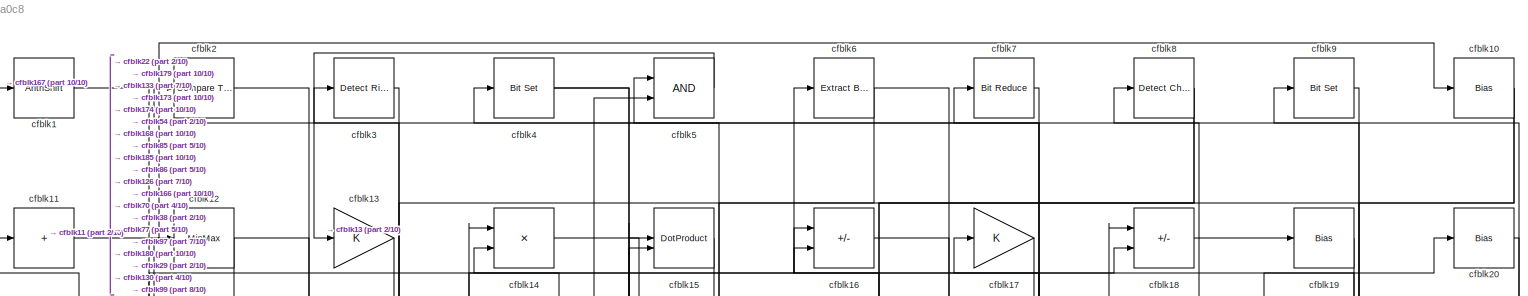
[diagram: root canvas - part 1/10, full width, top band]
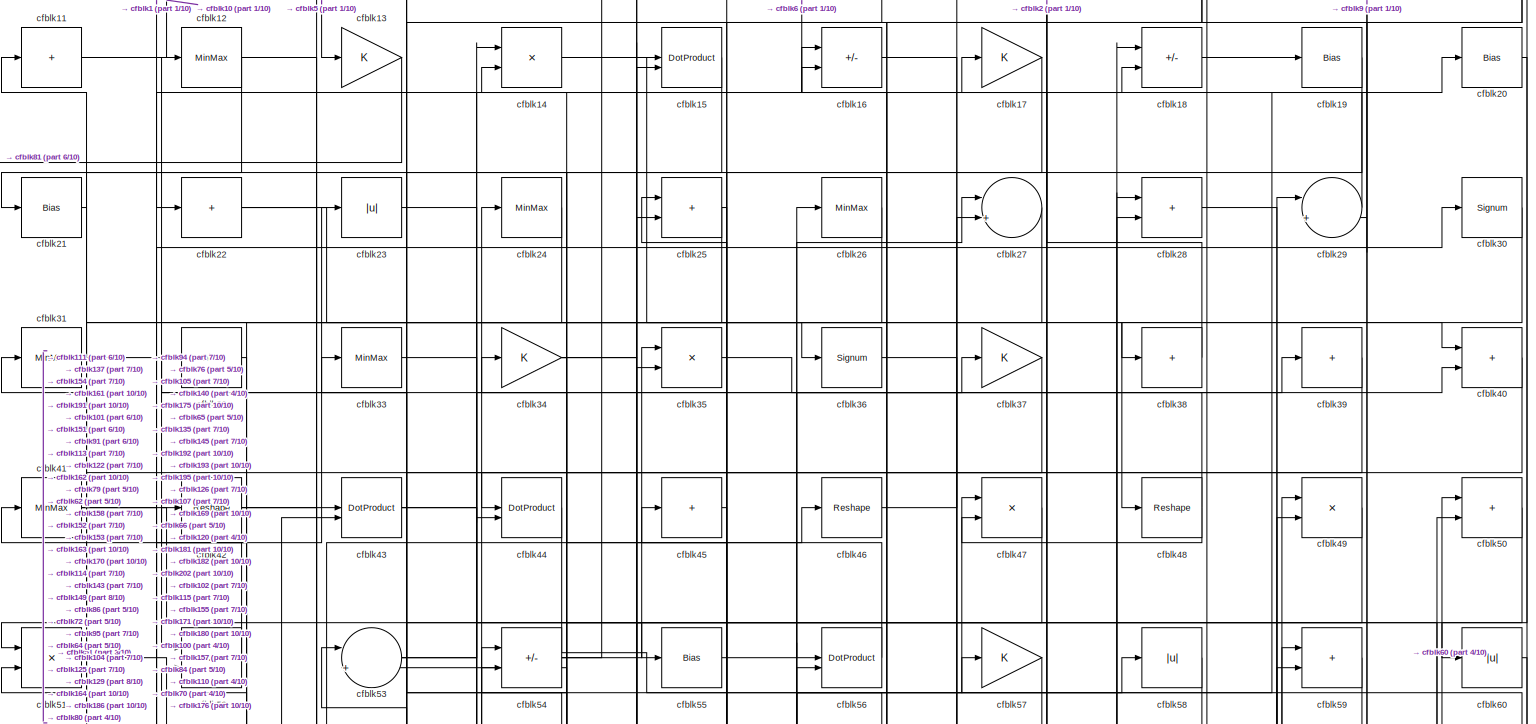
[diagram: root canvas - part 2/10, full width, top band]
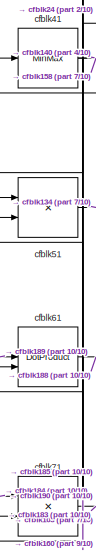
[diagram: root canvas - part 3/10, top left region]
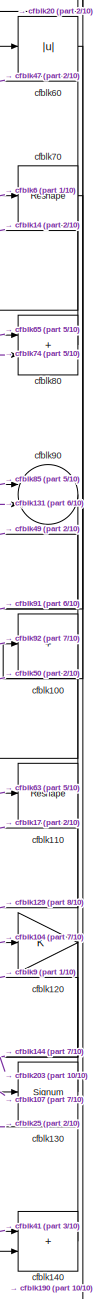
[diagram: root canvas - part 4/10, middle right region]
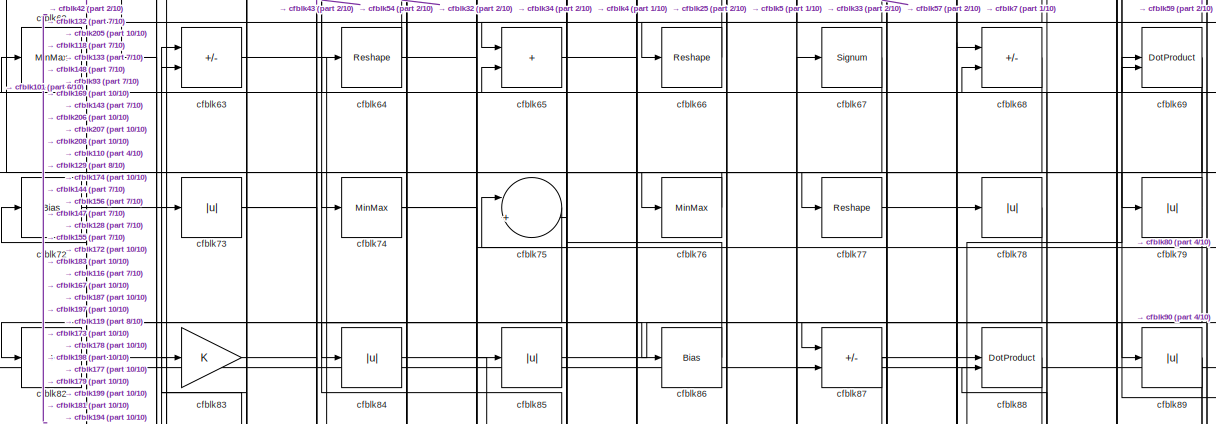
[diagram: root canvas - part 5/10, full width, middle band]
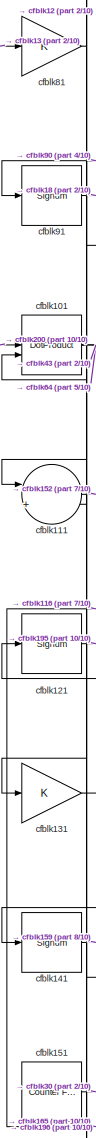
[diagram: root canvas - part 6/10, middle left region]
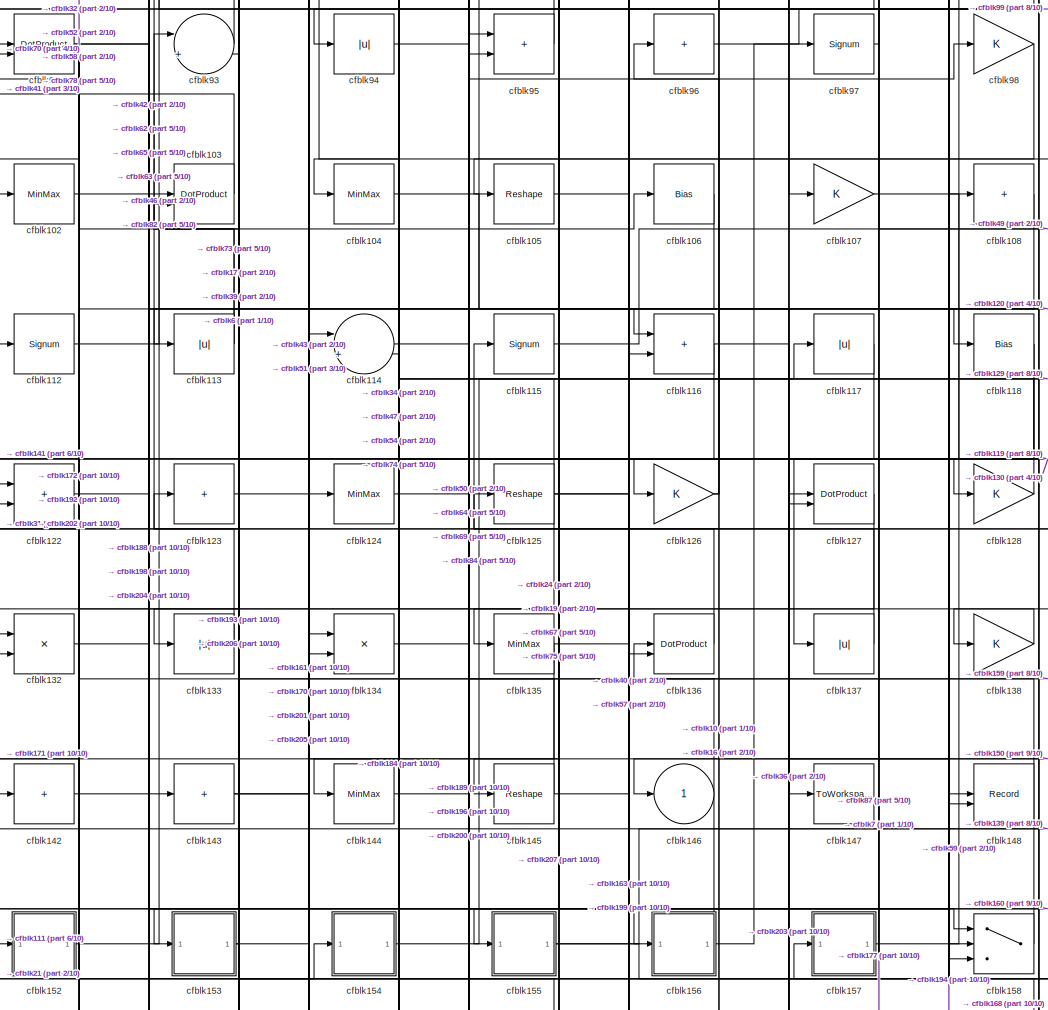
[diagram: root canvas - part 7/10, central region]
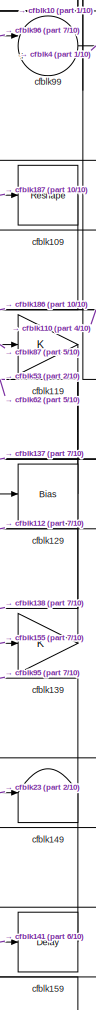
[diagram: root canvas - part 8/10, middle right region]
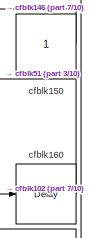
[diagram: root canvas - part 9/10, bottom right region]
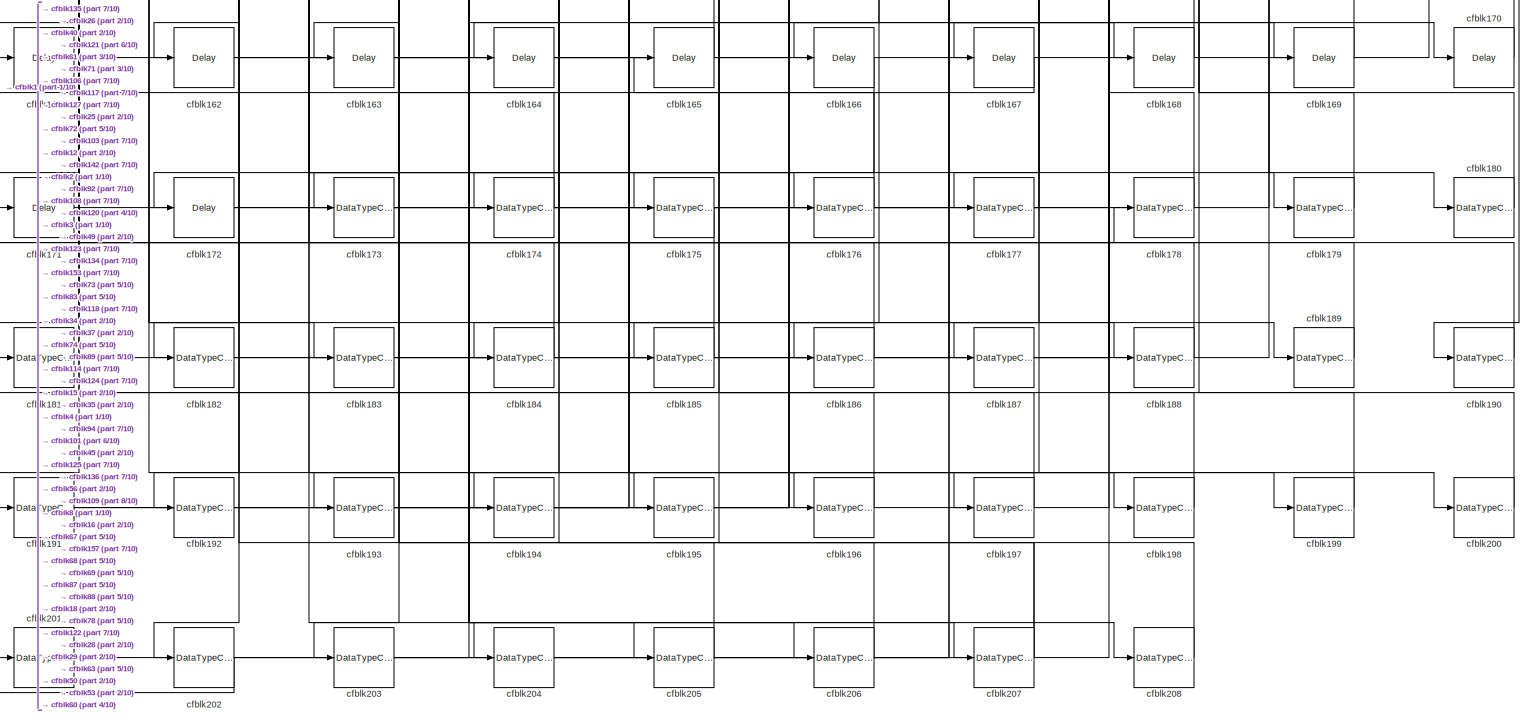
[diagram: root canvas - part 10/10, full width, bottom band]
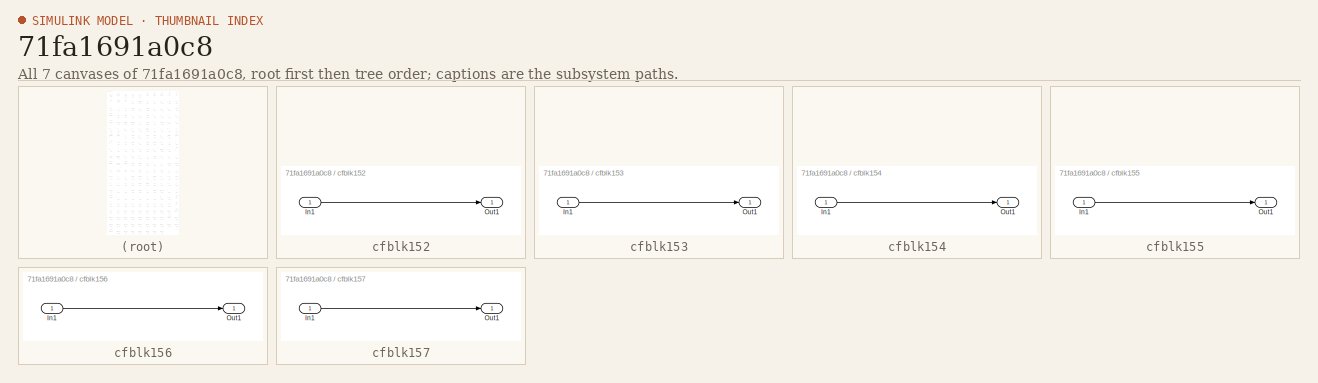
[diagram: thumbnail index - all 7 canvases of the model, root first then tree order]
MODEL slx_71fa1691a0c8
KIND model
CONFIG AbsTol = auto
CONFIG EnableMultiTasking = off
CONFIG FixedStep = auto
CONFIG MaxStep = auto
CONFIG MinStep = auto
CONFIG RelTol = 1e-3
CONFIG SampleTimeConstraint = Unconstrained
CONFIG SolverName = VariableStepAuto
CONFIG StartTime = 0.0
CONFIG StopTime = 10.0
BLOCK [ArithShift] cfblk1
  BitShiftNumber = 8
  InputPortMap = u0
BLOCK [Bias] cfblk10
  Bias = 0.0
  SaturateOnIntegerOverflow = off
BLOCK [Sum] cfblk100
  IconShape = rectangular
  Inputs = +
BLOCK [DotProduct] cfblk101
  OutDataTypeStr = Inherit: Inherit via internal rule
BLOCK [MinMax] cfblk102
BLOCK [DotProduct] cfblk103
  OutDataTypeStr = Inherit: Inherit via internal rule
BLOCK [MinMax] cfblk104
BLOCK [Reshape] cfblk105
BLOCK [Bias] cfblk106
  Bias = 0.0
  SaturateOnIntegerOverflow = off
BLOCK [Gain] cfblk107
BLOCK [Sum] cfblk108
  IconShape = rectangular
  Inputs = +
BLOCK [Reshape] cfblk109
BLOCK [Sum] cfblk11
  IconShape = rectangular
  Inputs = +
BLOCK [Reshape] cfblk110
BLOCK [Sum] cfblk111
  Inputs = |++
BLOCK [Signum] cfblk112
BLOCK [Abs] cfblk113
  SaturateOnIntegerOverflow = off
BLOCK [Sum] cfblk114
  Inputs = |++
BLOCK [Signum] cfblk115
BLOCK [Sum] cfblk116
  IconShape = rectangular
BLOCK [Abs] cfblk117
  SaturateOnIntegerOverflow = off
BLOCK [Bias] cfblk118
  Bias = 0.0
  SaturateOnIntegerOverflow = off
BLOCK [Gain] cfblk119
BLOCK [MinMax] cfblk12
BLOCK [Gain] cfblk120
BLOCK [Signum] cfblk121
BLOCK [Sum] cfblk122
  IconShape = rectangular
BLOCK [Sum] cfblk123
  IconShape = rectangular
  Inputs = +
BLOCK [MinMax] cfblk124
BLOCK [Reshape] cfblk125
BLOCK [Gain] cfblk126
BLOCK [DotProduct] cfblk127
  OutDataTypeStr = Inherit: Inherit via internal rule
BLOCK [Gain] cfblk128
BLOCK [Bias] cfblk129
  Bias = 0.0
  SaturateOnIntegerOverflow = off
BLOCK [Gain] cfblk13
BLOCK [Signum] cfblk130
BLOCK [Gain] cfblk131
BLOCK [Product] cfblk132
  Inputs = */
  RndMeth = Zero
  SaturateOnIntegerOverflow = on
BLOCK [Abs] cfblk133
  SaturateOnIntegerOverflow = off
BLOCK [Product] cfblk134
  Inputs = */
  RndMeth = Zero
  SaturateOnIntegerOverflow = on
BLOCK [MinMax] cfblk135
BLOCK [DotProduct] cfblk136
  OutDataTypeStr = Inherit: Inherit via internal rule
BLOCK [Abs] cfblk137
  SaturateOnIntegerOverflow = off
BLOCK [Gain] cfblk138
BLOCK [Gain] cfblk139
BLOCK [Product] cfblk14
  Inputs = */
  RndMeth = Zero
  SaturateOnIntegerOverflow = on
BLOCK [Sum] cfblk140
  IconShape = rectangular
BLOCK [Signum] cfblk141
BLOCK [Sum] cfblk142
  IconShape = rectangular
  Inputs = +
BLOCK [Sum] cfblk143
  IconShape = rectangular
  Inputs = +
BLOCK [MinMax] cfblk144
BLOCK [Reshape] cfblk145
BLOCK [Outport] cfblk146
  VectorParamsAs1DForOutWhenUnconnected = off
BLOCK [ToWorkspace] cfblk147
  MaxDataPoints = inf
  SampleTime = -1
  SaveFormat = Timeseries
  VariableName = simout
BLOCK [Record] cfblk148
  CompatibilityTag = XY
  FileSettingsInternal = {"entries":[{"content":{"excelSettings":{"content":{},"type":"Streamout.ExcelSettings"}},"type":"Streamout.FileSettingStorage","uuid":""}],"packageUris":["http:\/\/schema.mathworks.com\/mf0\/streamout_blocks\/R2020a"],"version":"1.0"}
  Layout = [1 1]
  SignalsInternal = {"entries":[{"content":{"signals":[{"content":{"blockPath":[],"dimensions":[1],"domain":"","lineColor":"#a2142f","plots":[1],"port":1,"signalID":6665,"signalName":"XY Graph:1"},"type":"RecordBlkView.Signal","uuid":""},{"content":{"blockPath":[],"dimensions":[1],"domain":"","lineColor":"#139fff","plots":[1],"port":2,"signalID":6668,"signalName":"XY Graph:2"},"type":"RecordBlkView.Signal","uuid":""}...<+146ch>
  VisualizationBindings = {"xyplotplugin":{"info":[{"series":[{"bindingParametersList":[{"parameter":"X-Axis","signalID":6665,"signalName":"XY Graph:1"},{"parameter":"Y-Axis","signalID":6668,"signalName":"XY Graph:2"}],"seriesID":59450}],"subplotID":1}]}}
  st = -1
BLOCK [Terminator] cfblk149
BLOCK [DotProduct] cfblk15
  OutDataTypeStr = Inherit: Inherit via internal rule
BLOCK [Constant] cfblk150
  SampleTime = -1
BLOCK [Reference] cfblk151  REF=hdlsllib/Sources/Counter
Free-Running
  SourceBlock = hdlsllib/Sources/Counter\nFree-Running
  SourceType = Counter Free-Running
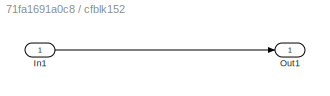
BLOCK [SubSystem] cfblk152
  LibrarySourceBlock = hdlsllib/Ports &\nSubsystems/Subsystem
BLOCK [Inport] cfblk152/In1
BLOCK [Outport] cfblk152/Out1
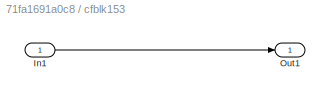
BLOCK [SubSystem] cfblk153
  LibrarySourceBlock = hdlsllib/Ports &\nSubsystems/Subsystem
BLOCK [Inport] cfblk153/In1
BLOCK [Outport] cfblk153/Out1
BLOCK [SubSystem] cfblk154
  LibrarySourceBlock = hdlsllib/Ports &\nSubsystems/Subsystem
BLOCK [Inport] cfblk154/In1
BLOCK [Outport] cfblk154/Out1
BLOCK [SubSystem] cfblk155
  LibrarySourceBlock = hdlsllib/Ports &\nSubsystems/Subsystem
BLOCK [Inport] cfblk155/In1
BLOCK [Outport] cfblk155/Out1
BLOCK [SubSystem] cfblk156
  LibrarySourceBlock = hdlsllib/Ports &\nSubsystems/Subsystem
BLOCK [Inport] cfblk156/In1
BLOCK [Outport] cfblk156/Out1
BLOCK [SubSystem] cfblk157
  LibrarySourceBlock = hdlsllib/Ports &\nSubsystems/Subsystem
BLOCK [Inport] cfblk157/In1
BLOCK [Outport] cfblk157/Out1
BLOCK [Switch] cfblk158
  InputSameDT = off
  SaturateOnIntegerOverflow = off
BLOCK [Delay] cfblk159
  InputPortMap = u0
  SampleTime = 1
BLOCK [Sum] cfblk16
  IconShape = rectangular
  Inputs = +-
BLOCK [Delay] cfblk160
  InputPortMap = u0
  SampleTime = 1
BLOCK [Delay] cfblk161
  InputPortMap = u0
  SampleTime = 1
BLOCK [Delay] cfblk162
  InputPortMap = u0
  SampleTime = 1
BLOCK [Delay] cfblk163
  InputPortMap = u0
  SampleTime = 1
BLOCK [Delay] cfblk164
  InputPortMap = u0
  SampleTime = 1
BLOCK [Delay] cfblk165
  InputPortMap = u0
  SampleTime = 1
BLOCK [Delay] cfblk166
  InputPortMap = u0
  SampleTime = 1
BLOCK [Delay] cfblk167
  InputPortMap = u0
  SampleTime = 1
BLOCK [Delay] cfblk168
  InputPortMap = u0
  SampleTime = 1
BLOCK [Delay] cfblk169
  InputPortMap = u0
  SampleTime = 1
BLOCK [Gain] cfblk17
BLOCK [Delay] cfblk170
  InputPortMap = u0
  SampleTime = 1
BLOCK [Delay] cfblk171
  InputPortMap = u0
  SampleTime = 1
BLOCK [Delay] cfblk172
  InputPortMap = u0
  SampleTime = 1
BLOCK [DataTypeConversion] cfblk173
  OutDataTypeStr = uint8
  RndMeth = Floor
  SaturateOnIntegerOverflow = off
BLOCK [DataTypeConversion] cfblk174
  OutDataTypeStr = uint8
  RndMeth = Floor
  SaturateOnIntegerOverflow = off
BLOCK [DataTypeConversion] cfblk175
  OutDataTypeStr = uint8
  RndMeth = Floor
  SaturateOnIntegerOverflow = off
BLOCK [DataTypeConversion] cfblk176
  OutDataTypeStr = uint8
  RndMeth = Floor
  SaturateOnIntegerOverflow = off
BLOCK [DataTypeConversion] cfblk177
  OutDataTypeStr = uint8
  RndMeth = Floor
  SaturateOnIntegerOverflow = off
BLOCK [DataTypeConversion] cfblk178
  OutDataTypeStr = uint8
  RndMeth = Floor
  SaturateOnIntegerOverflow = off
BLOCK [DataTypeConversion] cfblk179
  OutDataTypeStr = uint8
  RndMeth = Floor
  SaturateOnIntegerOverflow = off
BLOCK [Sum] cfblk18
  IconShape = rectangular
  Inputs = +-
BLOCK [DataTypeConversion] cfblk180
  OutDataTypeStr = uint8
  RndMeth = Floor
  SaturateOnIntegerOverflow = off
BLOCK [DataTypeConversion] cfblk181
  OutDataTypeStr = uint8
  RndMeth = Floor
  SaturateOnIntegerOverflow = off
BLOCK [DataTypeConversion] cfblk182
  OutDataTypeStr = uint8
  RndMeth = Floor
  SaturateOnIntegerOverflow = off
BLOCK [DataTypeConversion] cfblk183
  OutDataTypeStr = uint8
  RndMeth = Floor
  SaturateOnIntegerOverflow = off
BLOCK [DataTypeConversion] cfblk184
  OutDataTypeStr = uint8
  RndMeth = Floor
  SaturateOnIntegerOverflow = off
BLOCK [DataTypeConversion] cfblk185
  OutDataTypeStr = uint8
  RndMeth = Floor
  SaturateOnIntegerOverflow = off
BLOCK [DataTypeConversion] cfblk186
  OutDataTypeStr = uint8
  RndMeth = Floor
  SaturateOnIntegerOverflow = off
BLOCK [DataTypeConversion] cfblk187
  OutDataTypeStr = uint8
  RndMeth = Floor
  SaturateOnIntegerOverflow = off
BLOCK [DataTypeConversion] cfblk188
  OutDataTypeStr = uint8
  RndMeth = Floor
  SaturateOnIntegerOverflow = off
BLOCK [DataTypeConversion] cfblk189
  OutDataTypeStr = uint8
  RndMeth = Floor
  SaturateOnIntegerOverflow = off
BLOCK [Bias] cfblk19
  Bias = 0.0
  SaturateOnIntegerOverflow = off
BLOCK [DataTypeConversion] cfblk190
  OutDataTypeStr = uint8
  RndMeth = Floor
  SaturateOnIntegerOverflow = off
BLOCK [DataTypeConversion] cfblk191
  RndMeth = Floor
  SaturateOnIntegerOverflow = off
BLOCK [DataTypeConversion] cfblk192
  OutDataTypeStr = uint8
  RndMeth = Floor
  SaturateOnIntegerOverflow = off
BLOCK [DataTypeConversion] cfblk193
  OutDataTypeStr = uint8
  RndMeth = Floor
  SaturateOnIntegerOverflow = off
BLOCK [DataTypeConversion] cfblk194
  OutDataTypeStr = uint8
  RndMeth = Floor
  SaturateOnIntegerOverflow = off
BLOCK [DataTypeConversion] cfblk195
  OutDataTypeStr = uint8
  RndMeth = Floor
  SaturateOnIntegerOverflow = off
BLOCK [DataTypeConversion] cfblk196
  OutDataTypeStr = uint8
  RndMeth = Floor
  SaturateOnIntegerOverflow = off
BLOCK [DataTypeConversion] cfblk197
  OutDataTypeStr = uint8
  RndMeth = Floor
  SaturateOnIntegerOverflow = off
BLOCK [DataTypeConversion] cfblk198
  OutDataTypeStr = uint8
  RndMeth = Floor
  SaturateOnIntegerOverflow = off
BLOCK [DataTypeConversion] cfblk199
  OutDataTypeStr = uint8
  RndMeth = Floor
  SaturateOnIntegerOverflow = off
BLOCK [Reference] cfblk2  REF=hdlsllib/Logic and Bit
Operations/Compare
To Zero
  SourceBlock = hdlsllib/Logic and Bit\nOperations/Compare\nTo Zero
  SourceType = Compare To Zero
BLOCK [Bias] cfblk20
  Bias = 0.0
  SaturateOnIntegerOverflow = off
BLOCK [DataTypeConversion] cfblk200
  OutDataTypeStr = uint8
  RndMeth = Floor
  SaturateOnIntegerOverflow = off
BLOCK [DataTypeConversion] cfblk201
  OutDataTypeStr = uint8
  RndMeth = Floor
  SaturateOnIntegerOverflow = off
BLOCK [DataTypeConversion] cfblk202
  RndMeth = Floor
  SaturateOnIntegerOverflow = off
BLOCK [DataTypeConversion] cfblk203
  OutDataTypeStr = uint8
  RndMeth = Floor
  SaturateOnIntegerOverflow = off
BLOCK [DataTypeConversion] cfblk204
  OutDataTypeStr = uint8
  RndMeth = Floor
  SaturateOnIntegerOverflow = off
BLOCK [DataTypeConversion] cfblk205
  OutDataTypeStr = uint8
  RndMeth = Floor
  SaturateOnIntegerOverflow = off
BLOCK [DataTypeConversion] cfblk206
  OutDataTypeStr = uint8
  RndMeth = Floor
  SaturateOnIntegerOverflow = off
BLOCK [DataTypeConversion] cfblk207
  RndMeth = Floor
  SaturateOnIntegerOverflow = off
BLOCK [DataTypeConversion] cfblk208
  OutDataTypeStr = uint8
  RndMeth = Floor
  SaturateOnIntegerOverflow = off
BLOCK [Bias] cfblk21
  Bias = 0.0
  SaturateOnIntegerOverflow = off
BLOCK [Sum] cfblk22
  IconShape = rectangular
  Inputs = +
BLOCK [Abs] cfblk23
  SaturateOnIntegerOverflow = off
BLOCK [MinMax] cfblk24
BLOCK [Sum] cfblk25
  IconShape = rectangular
BLOCK [MinMax] cfblk26
BLOCK [Sum] cfblk27
  Inputs = |++
BLOCK [Sum] cfblk28
  IconShape = rectangular
BLOCK [Sum] cfblk29
  Inputs = |++
BLOCK [Reference] cfblk3  REF=hdlsllib/Logic and Bit
Operations/Detect Rise
Nonnegative
  SourceBlock = hdlsllib/Logic and Bit\nOperations/Detect Rise\nNonnegative
  SourceType = Detect Rise Nonnegative
BLOCK [Signum] cfblk30
BLOCK [MinMax] cfblk31
BLOCK [Bias] cfblk32
  Bias = 0.0
  SaturateOnIntegerOverflow = off
BLOCK [MinMax] cfblk33
BLOCK [Gain] cfblk34
BLOCK [Product] cfblk35
  Inputs = */
  RndMeth = Zero
  SaturateOnIntegerOverflow = on
BLOCK [Signum] cfblk36
BLOCK [Gain] cfblk37
BLOCK [Sum] cfblk38
  IconShape = rectangular
  Inputs = +
BLOCK [Sum] cfblk39
  IconShape = rectangular
  Inputs = +
BLOCK [Reference] cfblk4  REF=simulink/Logic and Bit
Operations/Bit Set
  LibrarySourceBlock = hdlsllib/Logic and Bit\nOperations/Bit Set
  SourceBlock = simulink/Logic and Bit\nOperations/Bit Set
  SourceType = Bit Set
BLOCK [Sum] cfblk40
  IconShape = rectangular
BLOCK [MinMax] cfblk41
BLOCK [Reshape] cfblk42
BLOCK [DotProduct] cfblk43
  OutDataTypeStr = Inherit: Inherit via internal rule
BLOCK [DotProduct] cfblk44
  OutDataTypeStr = Inherit: Inherit via internal rule
BLOCK [Sum] cfblk45
  IconShape = rectangular
  Inputs = +
BLOCK [Reshape] cfblk46
BLOCK [Product] cfblk47
  Inputs = */
  RndMeth = Zero
  SaturateOnIntegerOverflow = on
BLOCK [Reshape] cfblk48
BLOCK [Product] cfblk49
  Inputs = */
  RndMeth = Zero
  SaturateOnIntegerOverflow = on
BLOCK [Logic] cfblk5
  AllPortsSameDT = off
  OutDataTypeStr = boolean
BLOCK [Sum] cfblk50
  IconShape = rectangular
BLOCK [Product] cfblk51
  Inputs = */
  RndMeth = Zero
  SaturateOnIntegerOverflow = on
BLOCK [Product] cfblk52
  Inputs = */
  RndMeth = Zero
  SaturateOnIntegerOverflow = on
BLOCK [Sum] cfblk53
  Inputs = |++
BLOCK [Sum] cfblk54
  IconShape = rectangular
  Inputs = +-
BLOCK [Bias] cfblk55
  Bias = 0.0
  SaturateOnIntegerOverflow = off
BLOCK [DotProduct] cfblk56
  OutDataTypeStr = Inherit: Inherit via internal rule
BLOCK [Gain] cfblk57
BLOCK [Abs] cfblk58
  SaturateOnIntegerOverflow = off
BLOCK [Sum] cfblk59
  IconShape = rectangular
BLOCK [Reference] cfblk6  REF=simulink/Logic and Bit
Operations/Extract Bits
  LibrarySourceBlock = hdlsllib/Logic and Bit\nOperations/Extract Bits
  SourceBlock = simulink/Logic and Bit\nOperations/Extract Bits
  SourceType = Extract Bits
BLOCK [Abs] cfblk60
  SaturateOnIntegerOverflow = off
BLOCK [DotProduct] cfblk61
  OutDataTypeStr = Inherit: Inherit via internal rule
BLOCK [MinMax] cfblk62
BLOCK [Sum] cfblk63
  IconShape = rectangular
  Inputs = +-
BLOCK [Reshape] cfblk64
BLOCK [Sum] cfblk65
  IconShape = rectangular
BLOCK [Reshape] cfblk66
BLOCK [Signum] cfblk67
BLOCK [Sum] cfblk68
  IconShape = rectangular
  Inputs = +-
BLOCK [DotProduct] cfblk69
  OutDataTypeStr = Inherit: Inherit via internal rule
BLOCK [Reference] cfblk7  REF=hdlsllib/Logic and Bit
Operations/Bit Reduce
  SourceBlock = hdlsllib/Logic and Bit\nOperations/Bit Reduce
  SourceType = Bit Reduce
BLOCK [Reshape] cfblk70
BLOCK [Product] cfblk71
  Inputs = */
  RndMeth = Zero
  SaturateOnIntegerOverflow = on
BLOCK [Bias] cfblk72
  Bias = 0.0
  SaturateOnIntegerOverflow = off
BLOCK [Abs] cfblk73
  SaturateOnIntegerOverflow = off
BLOCK [MinMax] cfblk74
BLOCK [Sum] cfblk75
  Inputs = |++
BLOCK [MinMax] cfblk76
BLOCK [Reshape] cfblk77
BLOCK [Abs] cfblk78
  SaturateOnIntegerOverflow = off
BLOCK [Abs] cfblk79
  SaturateOnIntegerOverflow = off
BLOCK [Reference] cfblk8  REF=simulink/Logic and Bit
Operations/Detect
Change
  LibrarySourceBlock = hdlsllib/Logic and Bit\nOperations/Detect\nChange
  SourceBlock = simulink/Logic and Bit\nOperations/Detect\nChange
  SourceType = Detect Change
BLOCK [Sum] cfblk80
  IconShape = rectangular
BLOCK [Gain] cfblk81
BLOCK [Sum] cfblk82
  IconShape = rectangular
  Inputs = +
BLOCK [Gain] cfblk83
BLOCK [Abs] cfblk84
  SaturateOnIntegerOverflow = off
BLOCK [Abs] cfblk85
  SaturateOnIntegerOverflow = off
BLOCK [Bias] cfblk86
  Bias = 0.0
  SaturateOnIntegerOverflow = off
BLOCK [Sum] cfblk87
  IconShape = rectangular
  Inputs = +-
BLOCK [DotProduct] cfblk88
  OutDataTypeStr = Inherit: Inherit via internal rule
BLOCK [Abs] cfblk89
  SaturateOnIntegerOverflow = off
BLOCK [Reference] cfblk9  REF=simulink/Logic and Bit
Operations/Bit Set
  LibrarySourceBlock = hdlsllib/Logic and Bit\nOperations/Bit Set
  SourceBlock = simulink/Logic and Bit\nOperations/Bit Set
  SourceType = Bit Set
BLOCK [Sum] cfblk90
  Inputs = |++
BLOCK [Signum] cfblk91
BLOCK [DotProduct] cfblk92
  OutDataTypeStr = Inherit: Inherit via internal rule
BLOCK [Sum] cfblk93
  Inputs = |++
BLOCK [Abs] cfblk94
  SaturateOnIntegerOverflow = off
BLOCK [Sum] cfblk95
  IconShape = rectangular
BLOCK [Sum] cfblk96
  IconShape = rectangular
  Inputs = +
BLOCK [Signum] cfblk97
BLOCK [Gain] cfblk98
BLOCK [Sum] cfblk99
  Inputs = |++
NET cfblk100:1 -> cfblk140:2, cfblk49:1
NET cfblk101:1 -> cfblk111:2, cfblk43:1, cfblk64:1
LINE cfblk102:1 -> cfblk160:1
LINE cfblk103:1 -> cfblk41:1
LINE cfblk104:1 -> cfblk120:1
LINE cfblk105:1 -> cfblk58:1
LINE cfblk106:1 -> cfblk172:1
LINE cfblk107:1 -> cfblk130:1
LINE cfblk108:1 -> cfblk193:1
LINE cfblk109:1 -> cfblk186:1
NET cfblk10:1 -> cfblk126:1, cfblk99:2
NET cfblk110:1 -> cfblk129:1, cfblk50:1
LINE cfblk111:1 -> cfblk152:1
LINE cfblk112:1 -> cfblk106:1
NET cfblk113:1 -> cfblk52:2, cfblk93:1
LINE cfblk114:1 -> cfblk189:1
LINE cfblk115:1 -> cfblk49:2
NET cfblk116:1 -> cfblk141:1, cfblk148:2
LINE cfblk117:1 -> cfblk192:1
NET cfblk118:1 -> cfblk132:2, cfblk184:1
LINE cfblk119:1 -> cfblk137:1
LINE cfblk11:1 -> cfblk10:1
NET cfblk120:1 -> cfblk144:1, cfblk17:1, cfblk203:1
LINE cfblk121:1 -> cfblk195:1
LINE cfblk122:1 -> cfblk143:1
LINE cfblk123:1 -> cfblk205:1
LINE cfblk124:1 -> cfblk200:1
NET cfblk125:1 -> cfblk142:1, cfblk158:1, cfblk199:1, cfblk54:2
NET cfblk126:1 -> cfblk16:1, cfblk96:1
LINE cfblk127:1 -> cfblk202:1
LINE cfblk128:1 -> cfblk75:1
NET cfblk129:1 -> cfblk138:1, cfblk53:2, cfblk62:1
NET cfblk12:1 -> cfblk111:1, cfblk176:1
LINE cfblk130:1 -> cfblk9:1
LINE cfblk131:1 -> cfblk90:2
LINE cfblk132:1 -> cfblk65:2
LINE cfblk133:1 -> cfblk63:1
LINE cfblk134:1 -> cfblk98:1
NET cfblk135:1 -> cfblk171:1, cfblk40:2
LINE cfblk136:1 -> cfblk115:1
LINE cfblk137:1 -> cfblk31:1
LINE cfblk138:1 -> cfblk135:1
LINE cfblk139:1 -> cfblk112:1
LINE cfblk13:1 -> cfblk81:1
LINE cfblk140:1 -> cfblk25:1
LINE cfblk141:1 -> cfblk159:1
LINE cfblk142:1 -> cfblk198:1
NET cfblk143:1 -> cfblk16:2, cfblk69:2
LINE cfblk144:1 -> cfblk69:1
NET cfblk145:1 -> cfblk57:1, cfblk92:1
LINE cfblk14:1 -> cfblk40:1
LINE cfblk150:1 -> cfblk146:1
LINE cfblk151:1 -> cfblk30:1
LINE cfblk152/In1:1 -> cfblk152/Out1:1
LINE cfblk152:1 -> cfblk46:1
LINE cfblk153/In1:1 -> cfblk153/Out1:1
NET cfblk153:1 -> cfblk103:2, cfblk170:1
LINE cfblk154/In1:1 -> cfblk154/Out1:1
LINE cfblk154:1 -> cfblk117:1
LINE cfblk155/In1:1 -> cfblk155/Out1:1
NET cfblk155:1 -> cfblk139:1, cfblk59:2
LINE cfblk156/In1:1 -> cfblk156/Out1:1
NET cfblk156:1 -> cfblk93:2, cfblk97:1
LINE cfblk157/In1:1 -> cfblk157/Out1:1
LINE cfblk157:1 -> cfblk59:1
LINE cfblk158:1 -> cfblk136:1
LINE cfblk159:1 -> cfblk95:1
LINE cfblk15:1 -> cfblk44:1
LINE cfblk160:1 -> cfblk51:2
LINE cfblk161:1 -> cfblk134:1
LINE cfblk162:1 -> cfblk50:2
LINE cfblk163:1 -> cfblk136:2
LINE cfblk164:1 -> cfblk35:2
LINE cfblk165:1 -> cfblk101:2
LINE cfblk166:1 -> cfblk182:1
LINE cfblk167:1 -> cfblk1:1
LINE cfblk168:1 -> cfblk122:2
LINE cfblk169:1 -> cfblk63:2
LINE cfblk16:1 -> cfblk169:1
LINE cfblk170:1 -> cfblk53:1
LINE cfblk171:1 -> cfblk29:1
LINE cfblk172:1 -> cfblk67:1
LINE cfblk173:1 -> cfblk78:1
LINE cfblk174:1 -> cfblk3:1
LINE cfblk175:1 -> cfblk178:1
LINE cfblk176:1 -> cfblk45:1
LINE cfblk177:1 -> cfblk157:1
LINE cfblk178:1 -> cfblk88:1
LINE cfblk179:1 -> cfblk88:2
LINE cfblk17:1 -> cfblk113:1
LINE cfblk180:1 -> cfblk8:1
LINE cfblk181:1 -> cfblk28:1
LINE cfblk182:1 -> cfblk28:2
LINE cfblk183:1 -> cfblk87:2
LINE cfblk184:1 -> cfblk71:1
LINE cfblk185:1 -> cfblk71:2
LINE cfblk186:1 -> cfblk34:1
LINE cfblk187:1 -> cfblk109:1
LINE cfblk188:1 -> cfblk103:1
LINE cfblk189:1 -> cfblk61:1
LINE cfblk18:1 -> cfblk19:1
LINE cfblk190:1 -> cfblk61:2
NET cfblk191:1 -> cfblk15:1, cfblk25:2
LINE cfblk192:1 -> cfblk26:1
LINE cfblk193:1 -> cfblk56:2
LINE cfblk194:1 -> cfblk108:1
LINE cfblk195:1 -> cfblk56:1
LINE cfblk196:1 -> cfblk121:1
LINE cfblk197:1 -> cfblk165:1
LINE cfblk198:1 -> cfblk68:1
LINE cfblk199:1 -> cfblk68:2
LINE cfblk19:1 -> cfblk105:1
LINE cfblk1:1 -> cfblk22:1
LINE cfblk200:1 -> cfblk101:1
LINE cfblk201:1 -> cfblk124:1
NET cfblk202:1 -> cfblk18:1, cfblk201:1
LINE cfblk203:1 -> cfblk127:1
LINE cfblk204:1 -> cfblk127:2
LINE cfblk205:1 -> cfblk72:1
LINE cfblk206:1 -> cfblk123:1
NET cfblk207:1 -> cfblk114:2, cfblk125:1
LINE cfblk208:1 -> cfblk83:1
LINE cfblk20:1 -> cfblk60:1
LINE cfblk21:1 -> cfblk154:1
NET cfblk22:1 -> cfblk36:1, cfblk38:1
LINE cfblk23:1 -> cfblk149:1
LINE cfblk24:1 -> cfblk51:1
NET cfblk25:1 -> cfblk162:1, cfblk65:1
LINE cfblk26:1 -> cfblk191:1
LINE cfblk27:1 -> cfblk44:2
LINE cfblk28:1 -> cfblk180:1
LINE cfblk29:1 -> cfblk6:1
LINE cfblk2:1 -> cfblk179:1
LINE cfblk30:1 -> cfblk48:1
LINE cfblk31:1 -> cfblk52:1
LINE cfblk32:1 -> cfblk122:1
LINE cfblk33:1 -> cfblk55:1
NET cfblk34:1 -> cfblk15:2, cfblk76:1, cfblk94:1
LINE cfblk35:1 -> cfblk37:1
LINE cfblk36:1 -> cfblk107:1
LINE cfblk37:1 -> cfblk164:1
LINE cfblk38:1 -> cfblk2:1
LINE cfblk39:1 -> cfblk153:1
LINE cfblk3:1 -> cfblk173:1
LINE cfblk40:1 -> cfblk161:1
NET cfblk41:1 -> cfblk140:1, cfblk158:2
NET cfblk42:1 -> cfblk158:3, cfblk23:1
NET cfblk43:1 -> cfblk114:1, cfblk86:1
LINE cfblk44:1 -> cfblk20:1
LINE cfblk45:1 -> cfblk175:1
LINE cfblk46:1 -> cfblk27:2
LINE cfblk47:1 -> cfblk104:1
NET cfblk48:1 -> cfblk12:1, cfblk47:2
LINE cfblk49:1 -> cfblk163:1
NET cfblk4:1 -> cfblk168:1, cfblk85:1
LINE cfblk50:1 -> cfblk95:2
LINE cfblk51:1 -> cfblk134:2
LINE cfblk52:1 -> cfblk11:1
NET cfblk53:1 -> cfblk14:1, cfblk39:1
NET cfblk54:1 -> cfblk35:1, cfblk5:2
LINE cfblk55:1 -> cfblk27:1
LINE cfblk56:1 -> cfblk21:1
LINE cfblk57:1 -> cfblk66:1
LINE cfblk58:1 -> cfblk102:1
LINE cfblk59:1 -> cfblk84:1
LINE cfblk5:1 -> cfblk13:1
LINE cfblk60:1 -> cfblk190:1
LINE cfblk61:1 -> cfblk188:1
NET cfblk62:1 -> cfblk118:1, cfblk43:2, cfblk79:1
LINE cfblk63:1 -> cfblk110:1
NET cfblk64:1 -> cfblk128:1, cfblk32:1
LINE cfblk65:1 -> cfblk80:1
LINE cfblk66:1 -> cfblk33:1
LINE cfblk67:1 -> cfblk155:1
LINE cfblk68:1 -> cfblk197:1
NET cfblk69:1 -> cfblk187:1, cfblk75:2
NET cfblk6:1 -> cfblk133:1, cfblk70:1
NET cfblk70:1 -> cfblk100:1, cfblk47:1, cfblk92:2
LINE cfblk71:1 -> cfblk183:1
LINE cfblk72:1 -> cfblk54:1
NET cfblk73:1 -> cfblk206:1, cfblk208:1
NET cfblk74:1 -> cfblk156:1, cfblk174:1, cfblk80:2
LINE cfblk75:1 -> cfblk82:1
LINE cfblk76:1 -> cfblk74:1
LINE cfblk77:1 -> cfblk89:1
LINE cfblk78:1 -> cfblk132:1
NET cfblk79:1 -> cfblk42:1, cfblk87:1
LINE cfblk7:1 -> cfblk77:1
LINE cfblk80:1 -> cfblk14:2
LINE cfblk81:1 -> cfblk131:1
LINE cfblk82:1 -> cfblk148:1
LINE cfblk83:1 -> cfblk207:1
LINE cfblk84:1 -> cfblk147:1
LINE cfblk85:1 -> cfblk90:1
LINE cfblk86:1 -> cfblk5:1
NET cfblk87:1 -> cfblk116:2, cfblk119:1, cfblk167:1
LINE cfblk88:1 -> cfblk177:1
NET cfblk89:1 -> cfblk181:1, cfblk194:1
NET cfblk8:1 -> cfblk166:1, cfblk185:1
LINE cfblk90:1 -> cfblk91:1
LINE cfblk91:1 -> cfblk18:2
NET cfblk92:1 -> cfblk116:1, cfblk204:1
LINE cfblk93:1 -> cfblk73:1
LINE cfblk94:1 -> cfblk196:1
LINE cfblk95:1 -> cfblk24:1
LINE cfblk96:1 -> cfblk99:1
LINE cfblk97:1 -> cfblk7:1
LINE cfblk98:1 -> cfblk145:1
LINE cfblk99:1 -> cfblk4:1
LINE cfblk9:1 -> cfblk29:2
note: NET lines group one-source signal fan-out (src -> all destinations, sorted); 1:1 wires keep LINE
